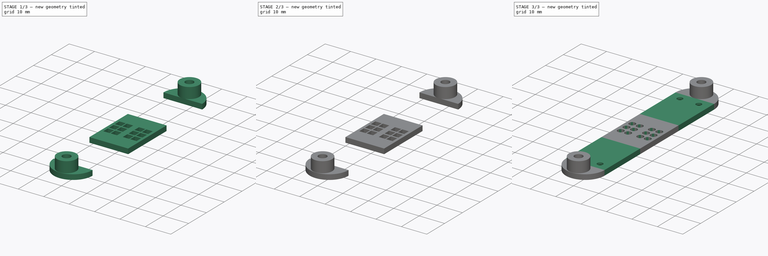
[diagram: build sequence overview — one tinted view per stage of 3, left to right]
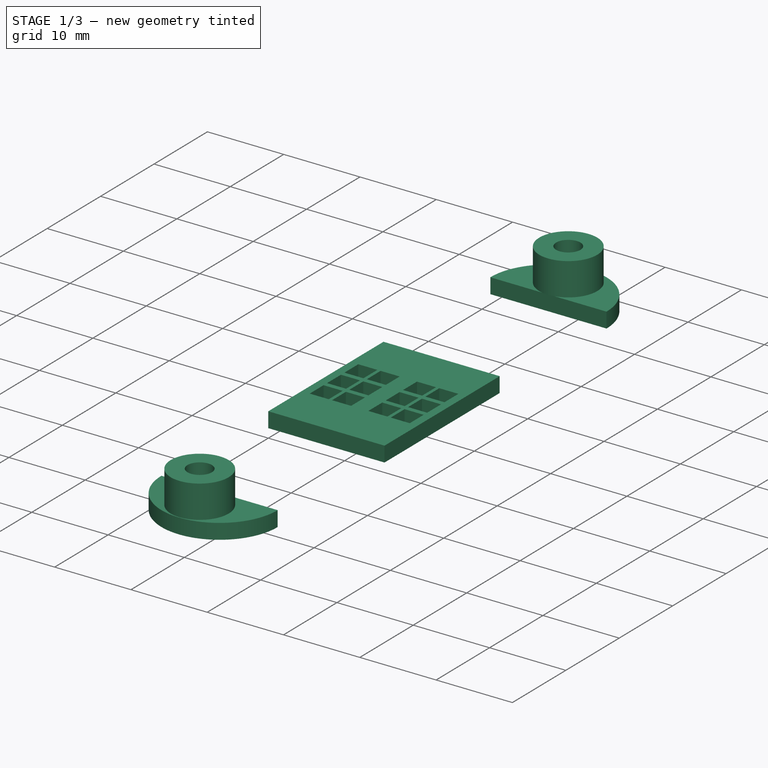
[diagram: stage 1 of 3 — iso view after this stage's code; geometry added in this stage tinted green]
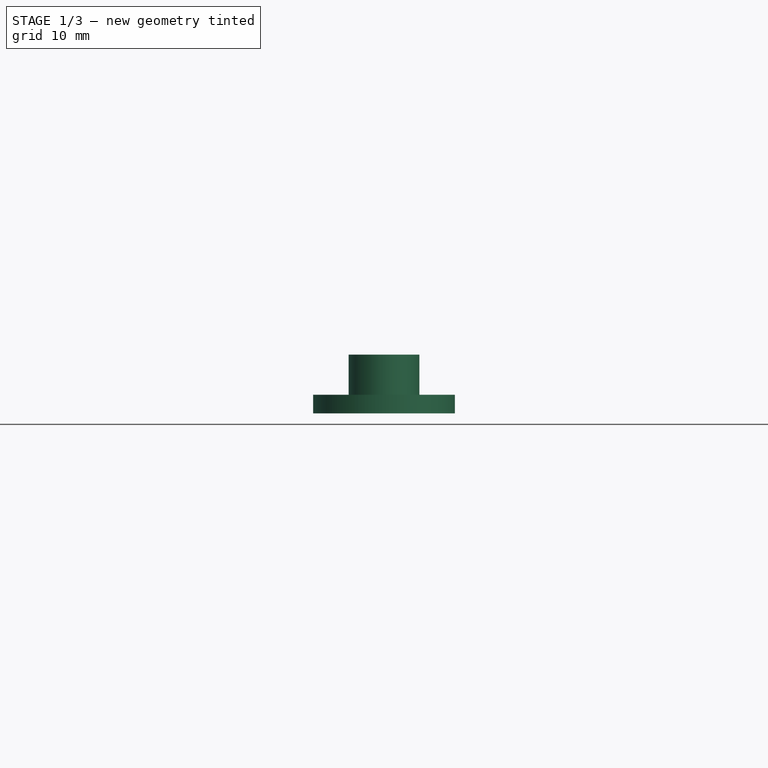
[diagram: stage 1 of 3 — front view after this stage's code; geometry added in this stage tinted green]
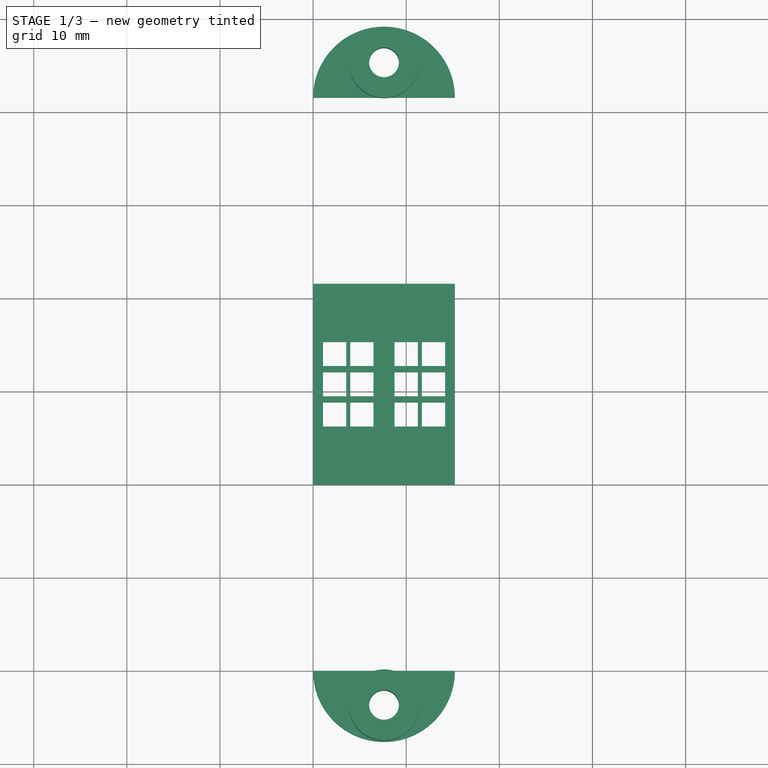
[diagram: stage 1 of 3 — top view after this stage's code; geometry added in this stage tinted green]
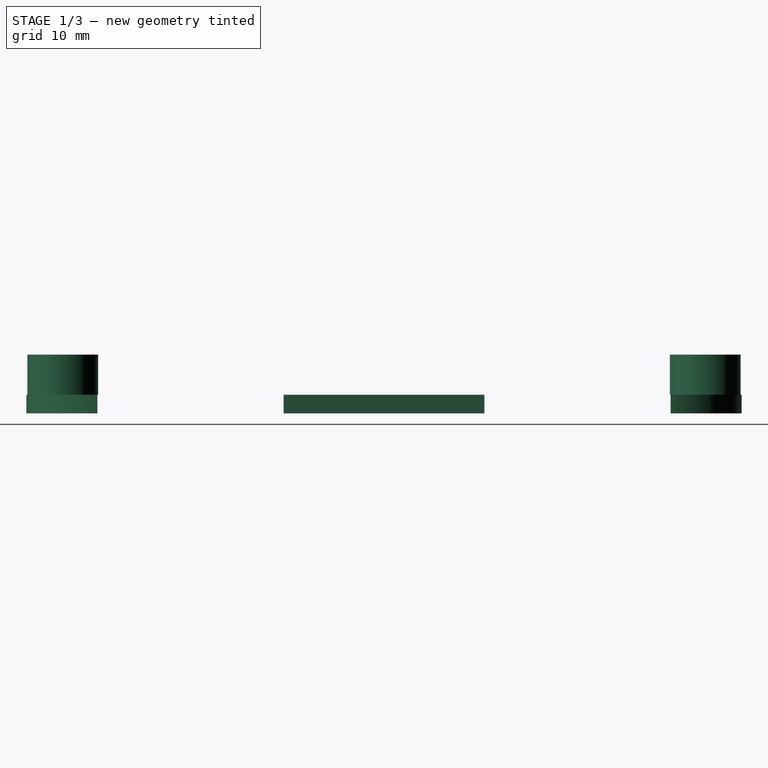
[diagram: stage 1 of 3 — right view after this stage's code; geometry added in this stage tinted green]
FCSTD DOCUMENT  (FreeCAD 0.16R6706 (Git))
Label: TopPlate 1.8
License: All rights reserved
LicenseURL: http://en.wikipedia.org/wiki/All_rights_reserved
objects: Sketcher::SketchObject×5, PartDesign::Pad×5, PartDesign::Chamfer×3
note: 18 computed .brp shape members not serialized (recipe doc carries the construction recipe); baked Part::Feature solids carry a one-line shape summary decoded from their .brp

FEATURE [Sketcher::SketchObject] Sketch001
  sketch-geometry (12):
    g0: LineSegment StartX=0 StartY=0 StartZ=0 EndX=15.232 EndY=0 EndZ=0
    g1: LineSegment StartX=15.232 StartY=0 StartZ=0 EndX=15.232 EndY=-20 EndZ=0
    g2: LineSegment StartX=15.232 StartY=-20 StartZ=0 EndX=0 EndY=-20 EndZ=0
    g3: LineSegment StartX=0 StartY=-20 StartZ=0 EndX=0 EndY=0 EndZ=0
    g4: Circle CenterX=3.8995 CenterY=-16.9419 CenterZ=0 NormalX=0 NormalY=0 NormalZ=1 Radius=1.1
    g5: Circle CenterX=11.3325 CenterY=-16.9419 CenterZ=0 NormalX=0 NormalY=0 NormalZ=1 Radius=1.1
    g6: LineSegment StartX=0 StartY=21.56 StartZ=0 EndX=15.232 EndY=21.56 EndZ=0
    g7: LineSegment StartX=15.232 StartY=21.56 StartZ=0 EndX=15.232 EndY=41.56 EndZ=0
    g8: LineSegment StartX=15.232 StartY=41.56 StartZ=0 EndX=0 EndY=41.56 EndZ=0
    g9: LineSegment StartX=0 StartY=41.56 StartZ=0 EndX=0 EndY=21.56 EndZ=0
    g10: Circle CenterX=3.8995 CenterY=38.5019 CenterZ=0 NormalX=0 NormalY=0 NormalZ=1 Radius=1.1
    g11: Circle CenterX=11.3325 CenterY=38.5019 CenterZ=0 NormalX=0 NormalY=0 NormalZ=1 Radius=1.1
  constraints (34):
    c: Coincident(g0,g1)
    c: Coincident(g1,g2)
    c: Coincident(g2,g3)
    c: Coincident(g3,g0)
    c: Horizontal(g0)
    c: Horizontal(g2)
    c: Vertical(g1)
    c: Vertical(g3)
    c: DistanceX(g-1,g0) = 15.232
    c: DistanceY(g2,g-1) = 20
    c: DistanceY(g4,g-1) = 16.9419
    c: Radius(g4) = 1.1
    c: DistanceY(g5,g-1) = 16.9419
    c: Radius(g5) = 1.1
    c: Coincident(g6,g7)
    c: Coincident(g7,g8)
    c: Coincident(g8,g9)
    c: Coincident(g9,g6)
    c: Horizontal(g6)
    c: Horizontal(g8)
    c: Vertical(g7)
    c: Vertical(g9)
    c: PointOnObject(g6,g-2)
    c: DistanceX(g6,g6) = 15.232
    c: DistanceY(g6,g7) = 20
    c: Radius(g11) = 1.1
    c: Radius(g10) = 1.1
    c: DistanceY(g-1,g10) = 38.5019
    c: DistanceY(g-1,g11) = 38.5019
    c: DistanceX(g6,g10) = 3.8995
    c: DistanceX(g-1,g11) = 11.3325
    c: DistanceX(g-1,g4) = 3.8995
    c: DistanceX(g-1,g5) = 11.3325
    c: DistanceY(g-1,g6) = 21.56
FEATURE [Sketcher::SketchObject] Sketch002
  sketch-geometry (6):
    g0: ArcOfCircle CenterX=7.616 CenterY=41.56 CenterZ=0 NormalX=0 NormalY=0 NormalZ=1 Radius=7.616 StartAngle=0 EndAngle=3.14159
    g1: ArcOfCircle CenterX=7.616 CenterY=-20 CenterZ=0 NormalX=0 NormalY=0 NormalZ=1 Radius=7.616 StartAngle=3.14159 EndAngle=6.28319
    g2: Circle CenterX=7.616 CenterY=45.28 CenterZ=0 NormalX=0 NormalY=0 NormalZ=1 Radius=1.6
    g3: Circle CenterX=7.616 CenterY=-23.72 CenterZ=0 NormalX=0 NormalY=0 NormalZ=1 Radius=1.6
    g4: LineSegment StartX=0 StartY=-20 StartZ=0 EndX=15.232 EndY=-20 EndZ=0
    g5: LineSegment StartX=0 StartY=41.56 StartZ=0 EndX=15.232 EndY=41.56 EndZ=0
  constraints (20):
    c: DistanceY(g-1,g0) = 41.56
    c: DistanceY(g-1,g0) = 41.56
    c: DistanceY(g-1,g0) = 41.56
    c: DistanceX(g-1,g0) = 7.616
    c: DistanceY(g1,g-1) = 20
    c: DistanceX(g-1,g1) = 7.616
    c: Radius(g2) = 1.6
    c: DistanceY(g-1,g2) = 45.28
    c: DistanceX(g-1,g2) = 7.616
    c: DistanceX(g1,g3) = 7.616
    c: Radius(g3) = 1.6
    c: DistanceY(g3,g-1) = 23.72
    c: Coincident(g4,g1)
    c: Coincident(g4,g1)
    c: Horizontal(g4)
    c: Coincident(g5,g0)
    c: Coincident(g5,g0)
    c: DistanceX(g-1,g0) = 0
    c: DistanceX(g-1,g1) = 0
    c: DistanceY(g1,g1) = 0
FEATURE [PartDesign::Pad] Pad
  Length = 2
  Length2 = 100
  Sketch = -> Sketch002
  Type = 0
FEATURE [Sketcher::SketchObject] Sketch005
  sketch-geometry (52):
    g0: LineSegment StartX=0 StartY=0 StartZ=0 EndX=15.232 EndY=0 EndZ=0
    g1: LineSegment StartX=15.232 StartY=0 StartZ=0 EndX=15.232 EndY=21.56 EndZ=0
    g2: LineSegment StartX=15.232 StartY=21.56 StartZ=0 EndX=0 EndY=21.56 EndZ=0
    g3: LineSegment StartX=0 StartY=21.56 StartZ=0 EndX=0 EndY=0 EndZ=0
    g4: LineSegment StartX=1.0599 StartY=12.08 StartZ=0 EndX=3.5599 EndY=12.08 EndZ=0
    g5: LineSegment StartX=3.5599 StartY=12.08 StartZ=0 EndX=3.5599 EndY=9.48 EndZ=0
    g6: LineSegment StartX=3.5599 StartY=9.48 StartZ=0 EndX=1.0599 EndY=9.48 EndZ=0
    g7: LineSegment StartX=1.0599 StartY=9.48 StartZ=0 EndX=1.0599 EndY=12.08 EndZ=0
    g8: LineSegment StartX=1.0599 StartY=15.33 StartZ=0 EndX=3.5599 EndY=15.33 EndZ=0
    g9: LineSegment StartX=3.5599 StartY=15.33 StartZ=0 EndX=3.5599 EndY=12.73 EndZ=0
    g10: LineSegment StartX=3.5599 StartY=12.73 StartZ=0 EndX=1.0599 EndY=12.73 EndZ=0
    g11: LineSegment StartX=1.0599 StartY=12.73 StartZ=0 EndX=1.0599 EndY=15.33 EndZ=0
    g12: LineSegment StartX=1.0599 StartY=8.83 StartZ=0 EndX=3.5599 EndY=8.83 EndZ=0
    g13: LineSegment StartX=3.5599 StartY=8.83 StartZ=0 EndX=3.5599 EndY=6.23 EndZ=0
    g14: LineSegment StartX=3.5599 StartY=6.23 StartZ=0 EndX=1.0599 EndY=6.23 EndZ=0
    g15: LineSegment StartX=1.0599 StartY=6.23 StartZ=0 EndX=1.0599 EndY=8.83 EndZ=0
    g16: LineSegment StartX=3.9899 StartY=15.33 StartZ=0 EndX=6.4899 EndY=15.33 EndZ=0
    g17: LineSegment StartX=6.4899 StartY=15.33 StartZ=0 EndX=6.4899 EndY=12.73 EndZ=0
    g18: LineSegment StartX=6.4899 StartY=12.73 StartZ=0 EndX=3.9899 EndY=12.73 EndZ=0
    g19: LineSegment StartX=3.9899 StartY=12.73 StartZ=0 EndX=3.9899 EndY=15.33 EndZ=0
    g20: LineSegment StartX=3.9899 StartY=12.08 StartZ=0 EndX=6.4899 EndY=12.08 EndZ=0
    g21: LineSegment StartX=6.4899 StartY=12.08 StartZ=0 EndX=6.4899 EndY=9.48 EndZ=0
    g22: LineSegment StartX=6.4899 StartY=9.48 StartZ=0 EndX=3.9899 EndY=9.48 EndZ=0
    g23: LineSegment StartX=3.9899 StartY=9.48 StartZ=0 EndX=3.9899 EndY=12.08 EndZ=0
    g24: LineSegment StartX=3.9899 StartY=8.83 StartZ=0 EndX=6.4899 EndY=8.83 EndZ=0
    g25: LineSegment StartX=6.4899 StartY=8.83 StartZ=0 EndX=6.4899 EndY=6.23 EndZ=0
    g26: LineSegment StartX=6.4899 StartY=6.23 StartZ=0 EndX=3.9899 EndY=6.23 EndZ=0
    g27: LineSegment StartX=3.9899 StartY=6.23 StartZ=0 EndX=3.9899 EndY=8.83 EndZ=0
    g28: LineSegment StartX=8.75 StartY=15.33 StartZ=0 EndX=11.25 EndY=15.33 EndZ=0
    g29: LineSegment StartX=11.25 StartY=15.33 StartZ=0 EndX=11.25 EndY=12.73 EndZ=0
    g30: LineSegment StartX=11.25 StartY=12.73 StartZ=0 EndX=8.75 EndY=12.73 EndZ=0
    g31: LineSegment StartX=8.75 StartY=12.73 StartZ=0 EndX=8.75 EndY=15.33 EndZ=0
    g32: LineSegment StartX=11.68 StartY=15.33 StartZ=0 EndX=14.18 EndY=15.33 EndZ=0
    g33: LineSegment StartX=14.18 StartY=15.33 StartZ=0 EndX=14.18 EndY=12.73 EndZ=0
    g34: LineSegment StartX=14.18 StartY=12.73 StartZ=0 EndX=11.68 EndY=12.73 EndZ=0
    g35: LineSegment StartX=11.68 StartY=12.73 StartZ=0 EndX=11.68 EndY=15.33 EndZ=0
    g36: LineSegment StartX=8.75 StartY=12.08 StartZ=0 EndX=11.25 EndY=12.08 EndZ=0
    g37: LineSegment StartX=11.25 StartY=12.08 StartZ=0 EndX=11.25 EndY=9.48 EndZ=0
    g38: LineSegment StartX=11.25 StartY=9.48 StartZ=0 EndX=8.75 EndY=9.48 EndZ=0
    g39: LineSegment StartX=8.75 StartY=9.48 StartZ=0 EndX=8.75 EndY=12.08 EndZ=0
    g40: LineSegment StartX=11.68 StartY=12.08 StartZ=0 EndX=14.18 EndY=12.08 EndZ=0
    g41: LineSegment StartX=14.18 StartY=12.08 StartZ=0 EndX=14.18 EndY=9.48 EndZ=0
    g42: LineSegment StartX=14.18 StartY=9.48 StartZ=0 EndX=11.68 EndY=9.48 EndZ=0
    g43: LineSegment StartX=11.68 StartY=9.48 StartZ=0 EndX=11.68 EndY=12.08 EndZ=0
    g44: LineSegment StartX=8.75 StartY=8.83 StartZ=0 EndX=11.25 EndY=8.83 EndZ=0
    g45: LineSegment StartX=11.25 StartY=8.83 StartZ=0 EndX=11.25 EndY=6.23 EndZ=0
    g46: LineSegment StartX=11.25 StartY=6.23 StartZ=0 EndX=8.75 EndY=6.23 EndZ=0
    g47: LineSegment StartX=8.75 StartY=6.23 StartZ=0 EndX=8.75 EndY=8.83 EndZ=0
    g48: LineSegment StartX=11.68 StartY=8.83 StartZ=0 EndX=14.18 EndY=8.83 EndZ=0
    g49: LineSegment StartX=14.18 StartY=8.83 StartZ=0 EndX=14.18 EndY=6.23 EndZ=0
    g50: LineSegment StartX=14.18 StartY=6.23 StartZ=0 EndX=11.68 EndY=6.23 EndZ=0
    g51: LineSegment StartX=11.68 StartY=6.23 StartZ=0 EndX=11.68 EndY=8.83 EndZ=0
  constraints (155):
    c: Coincident(g0,g1)
    c: Coincident(g1,g2)
    c: Coincident(g2,g3)
    c: Coincident(g3,g0)
    c: Horizontal(g0)
    c: Horizontal(g2)
    c: Vertical(g1)
    c: Vertical(g3)
    c: Coincident(g0,g-1)
    c: DistanceX(g-1,g0) = 15.232
    c: DistanceY(g-1,g2) = 21.56
    c: Coincident(g4,g5)
    c: Coincident(g5,g6)
    c: Coincident(g6,g7)
    c: Coincident(g7,g4)
    c: Horizontal(g4)
    c: Horizontal(g6)
    c: Vertical(g5)
    c: Vertical(g7)
    c: Coincident(g8,g9)
    c: Coincident(g9,g10)
    c: Coincident(g10,g11)
    c: Coincident(g11,g8)
    c: Horizontal(g8)
    c: Horizontal(g10)
    c: Vertical(g9)
    c: Vertical(g11)
    c: Coincident(g12,g13)
    c: Coincident(g13,g14)
    c: Coincident(g14,g15)
    c: Coincident(g15,g12)
    c: Horizontal(g12)
    c: Horizontal(g14)
    c: Vertical(g13)
    c: Vertical(g15)
    c: Coincident(g16,g17)
    c: Coincident(g17,g18)
    c: Coincident(g18,g19)
    c: Coincident(g19,g16)
    c: Horizontal(g16)
    c: Horizontal(g18)
    c: Vertical(g17)
    c: Vertical(g19)
    c: Coincident(g20,g21)
    c: Coincident(g21,g22)
    c: Coincident(g22,g23)
    c: Coincident(g23,g20)
    c: Horizontal(g20)
    c: Horizontal(g22)
    c: Vertical(g21)
    c: Vertical(g23)
    c: Coincident(g24,g25)
    c: Coincident(g25,g26)
    c: Coincident(g26,g27)
    c: Coincident(g27,g24)
    c: Horizontal(g24)
    c: Horizontal(g26)
    c: Vertical(g25)
    c: Vertical(g27)
    c: DistanceY(g6,g4) = 2.6
    c: DistanceY(g10,g8) = 2.6
    c: DistanceY(g14,g12) = 2.6
    c: DistanceY(g-1,g6) = 9.48
    c: DistanceY(g22,g20) = 2.6
    c: DistanceY(g18,g16) = 2.6
    c: DistanceY(g26,g24) = 2.6
    c: DistanceY(g4,g10) = 0.65
    c: DistanceY(g12,g6) = 0.65
    c: DistanceY(g24,g22) = 0.65
    c: DistanceY(g20,g18) = 0.65
    c: DistanceX(g6,g5) = 2.5
    c: DistanceX(g14,g13) = 2.5
    c: DistanceX(g10,g4) = 0
    c: DistanceX(g6,g12) = 0
    c: DistanceX(g10,g9) = 2.5
    c: DistanceX(g20,g18) = 0
    c: DistanceX(g22,g24) = 0
    c: DistanceX(g22,g21) = 2.5
    c: DistanceX(g26,g25) = 2.5
    c: DistanceX(g18,g17) = 2.5
    c: DistanceX(g5,g22) = 0.43
    c: DistanceX(g-1,g6) = 1.0599
    c: Coincident(g28,g29)
    c: Coincident(g29,g30)
    c: Coincident(g30,g31)
    c: Coincident(g31,g28)
    c: Horizontal(g28)
    c: Horizontal(g30)
    c: Vertical(g29)
    c: Vertical(g31)
    c: Coincident(g32,g33)
    c: Coincident(g33,g34)
    c: Coincident(g34,g35)
    c: Coincident(g35,g32)
    c: Horizontal(g32)
    c: Horizontal(g34)
    c: Vertical(g33)
    c: Vertical(g35)
    c: Coincident(g36,g37)
    c: Coincident(g37,g38)
    c: Coincident(g38,g39)
    c: Coincident(g39,g36)
    c: Horizontal(g36)
    c: Horizontal(g38)
    c: Vertical(g37)
    c: Vertical(g39)
    c: Coincident(g40,g41)
    c: Coincident(g41,g42)
    c: Coincident(g42,g43)
    c: Coincident(g43,g40)
    c: Horizontal(g40)
    c: Horizontal(g42)
    c: Vertical(g41)
    c: Vertical(g43)
    c: Coincident(g44,g45)
    c: Coincident(g45,g46)
    c: Coincident(g46,g47)
    c: Coincident(g47,g44)
    c: Horizontal(g44)
    c: Horizontal(g46)
    c: Vertical(g45)
    c: Vertical(g47)
    c: Coincident(g48,g49)
    c: Coincident(g49,g50)
    c: Coincident(g50,g51)
    c: Coincident(g51,g48)
    c: Horizontal(g48)
    c: Horizontal(g50)
    c: Vertical(g49)
    c: Vertical(g51)
    c: DistanceX(g-1,g38) = 8.75
    c: DistanceX(g36,g36) = 2.5
    c: DistanceX(g30,g29) = 2.5
    c: DistanceX(g44,g44) = 2.5
    c: DistanceX(g40,g40) = 2.5
    c: DistanceX(g34,g33) = 2.5
    c: DistanceX(g50,g49) = 2.5
    c: DistanceY(g46,g44) = 2.6
    c: DistanceY(g50,g48) = 2.6
    c: DistanceY(g42,g40) = 2.6
    c: DistanceY(g30,g28) = 2.6
    c: DistanceY(g34,g32) = 2.6
    c: DistanceY(g38,g36) = 2.6
    c: DistanceX(g38,g44) = 0
    c: DistanceX(g30,g36) = 0
    c: DistanceX(g34,g40) = 0
    c: DistanceX(g42,g48) = 0
    c: DistanceY(g48,g42) = 0.65
    c: DistanceY(g44,g38) = 0.65
    c: DistanceY(g40,g34) = 0.65
    c: DistanceY(g36,g30) = 0.65
    c: DistanceY(g42,g37) = 0
    c: DistanceX(g37,g42) = 0.43
    c: DistanceY(g-1,g38) = 9.48
    c: DistanceY(g22,g5) = 0
FEATURE [PartDesign::Pad] Pad003
  Length = 2
  Length2 = 100
  Sketch = -> Sketch005
  Type = 0
FEATURE [Sketcher::SketchObject] Sketch
  Placement = pos=(0,0,2) rot=(0,0,1;0rad)
  sketch-geometry (4):
    g0: Circle CenterX=7.616 CenterY=45.28 CenterZ=0 NormalX=0 NormalY=0 NormalZ=1 Radius=3.8
    g1: Circle CenterX=7.616 CenterY=45.28 CenterZ=0 NormalX=0 NormalY=0 NormalZ=1 Radius=1.6
    g2: Circle CenterX=7.616 CenterY=-23.72 CenterZ=0 NormalX=0 NormalY=0 NormalZ=1 Radius=3.8
    g3: Circle CenterX=7.616 CenterY=-23.72 CenterZ=0 NormalX=0 NormalY=0 NormalZ=1 Radius=1.6
  constraints (10):
    c: Radius(g0) = 3.8
    c: Coincident(g1,g0)
    c: Radius(g1) = 1.6
    c: DistanceX(g-1,g0) = 7.616
    c: DistanceY(g-1,g0) = 45.28
    c: Coincident(g3,g2)
    c: Radius(g2) = 3.8
    c: Radius(g3) = 1.6
    c: DistanceX(g-1,g2) = 7.616
    c: DistanceY(g2,g-1) = 23.72
FEATURE [PartDesign::Pad] Pad004
  Length = 4.3
  Length2 = 100
  Placement = pos=(0,0,2) rot=(0,0,1;0rad)
  Sketch = -> Sketch
  Type = 0
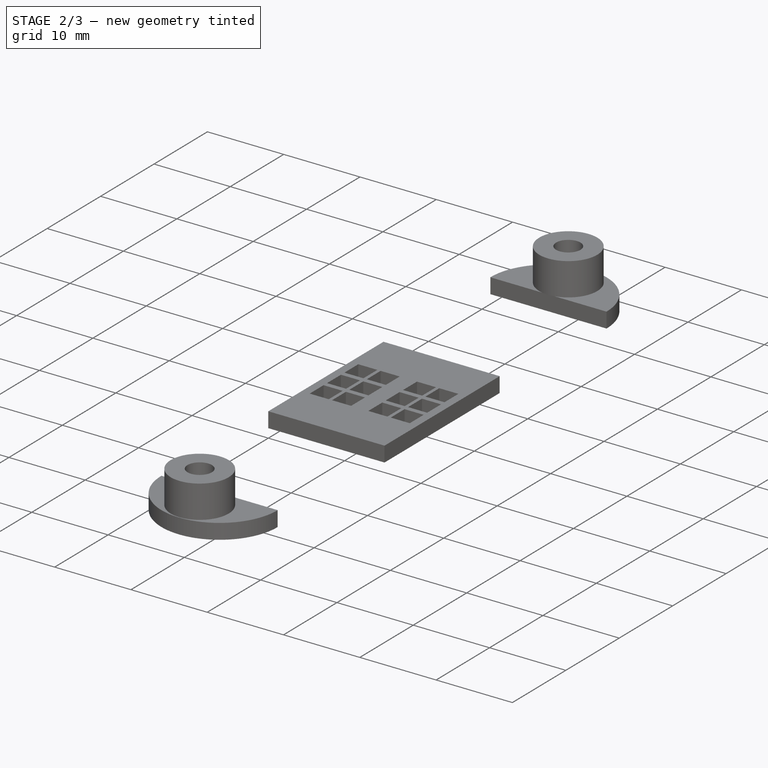
[diagram: stage 2 of 3 — iso view after this stage's code; geometry added in this stage tinted green]
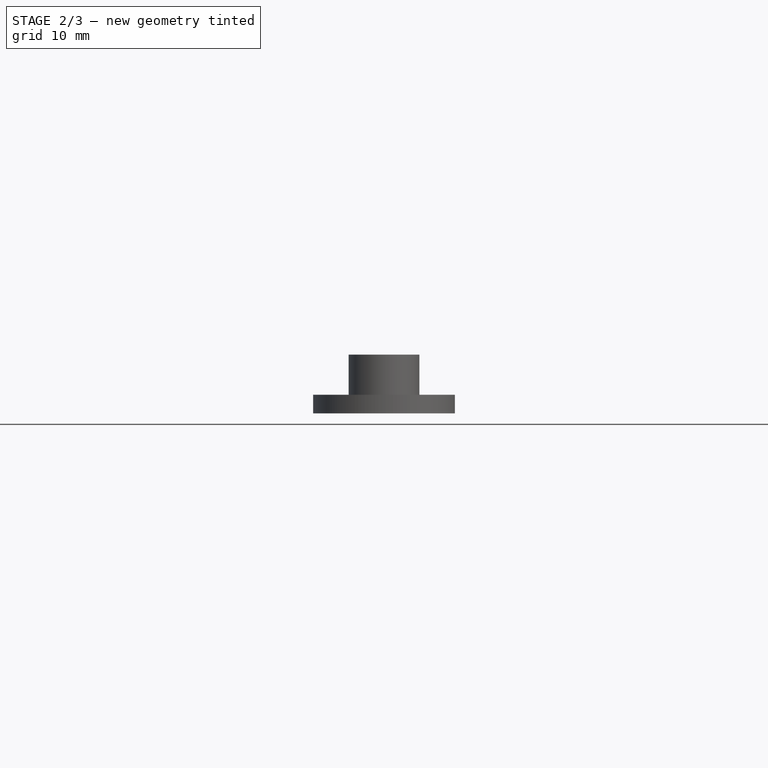
[diagram: stage 2 of 3 — front view after this stage's code; geometry added in this stage tinted green]
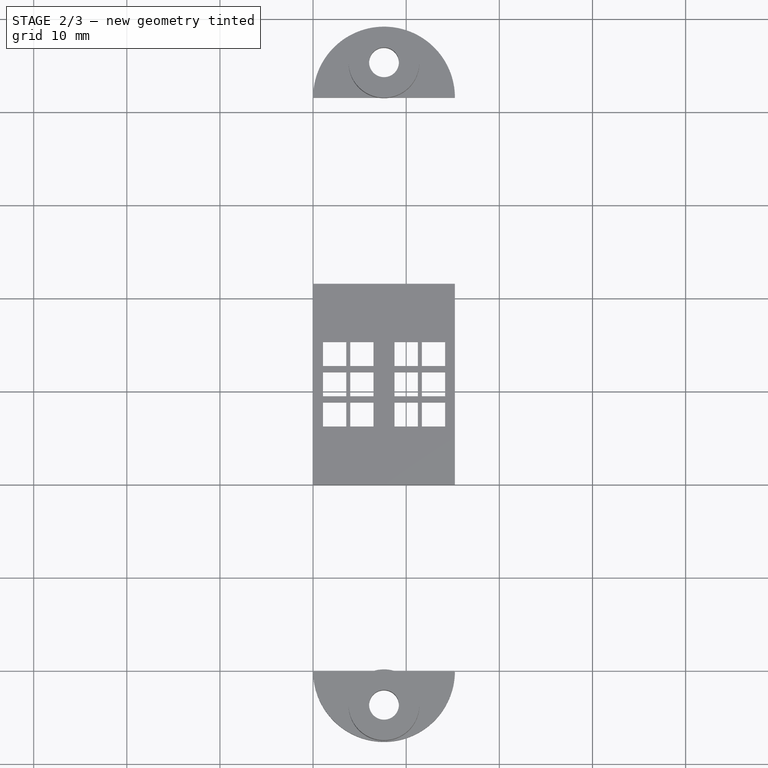
[diagram: stage 2 of 3 — top view after this stage's code; geometry added in this stage tinted green]
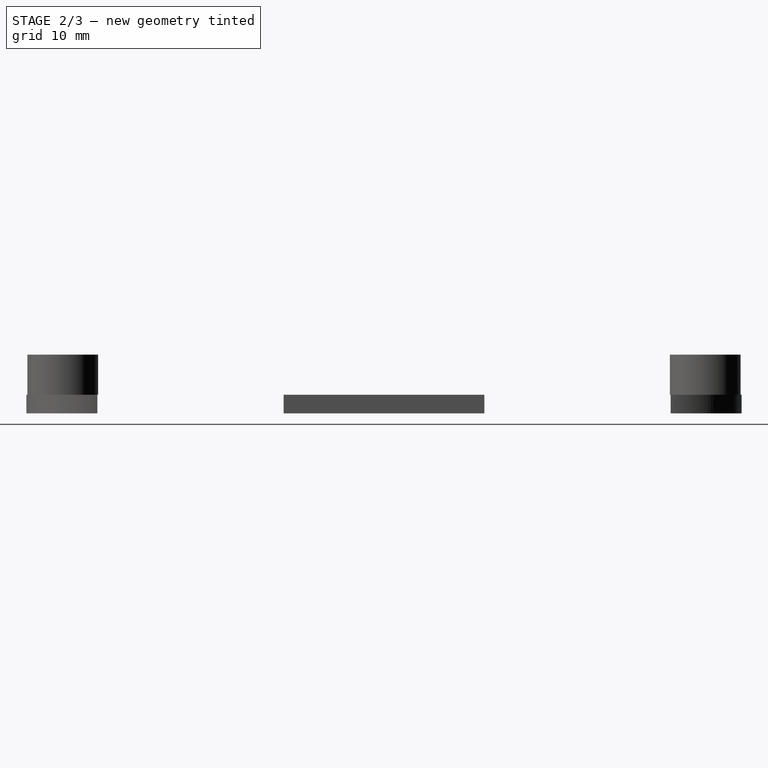
[diagram: stage 2 of 3 — right view after this stage's code; geometry added in this stage tinted green]
FEATURE [PartDesign::Chamfer] Chamfer
  Base = -> Pad [Edge8]
  Size = 1.65
FEATURE [PartDesign::Chamfer] Chamfer003
  Base = -> Chamfer [Edge19]
  Size = 1.65
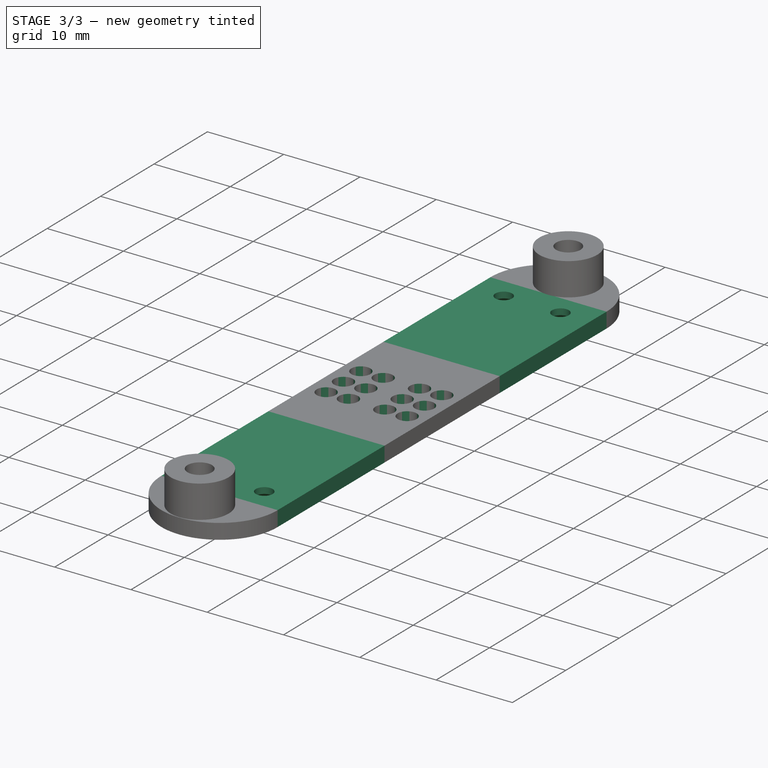
[diagram: stage 3 of 3 — iso view after this stage's code; geometry added in this stage tinted green]
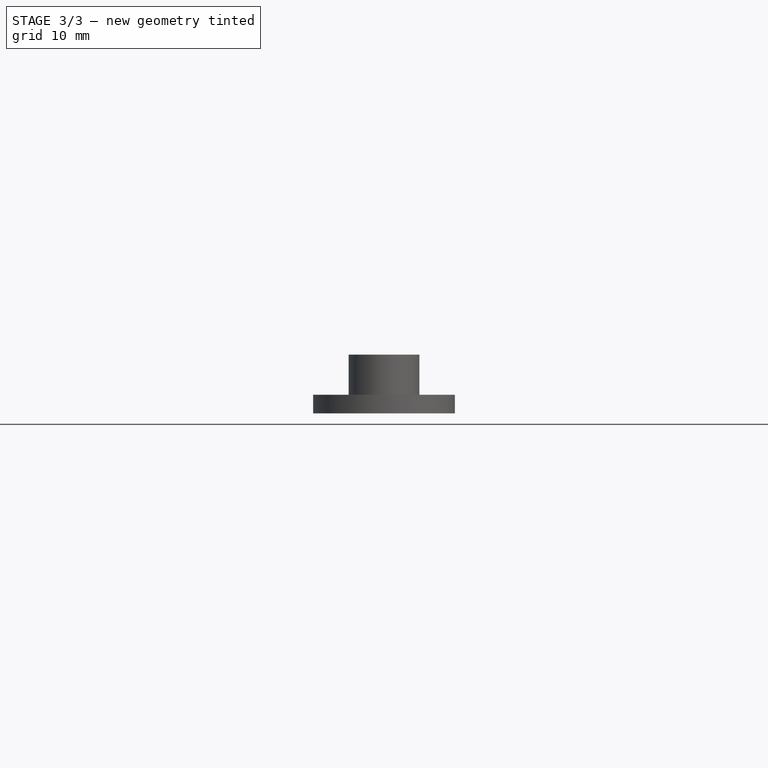
[diagram: stage 3 of 3 — front view after this stage's code; geometry added in this stage tinted green]
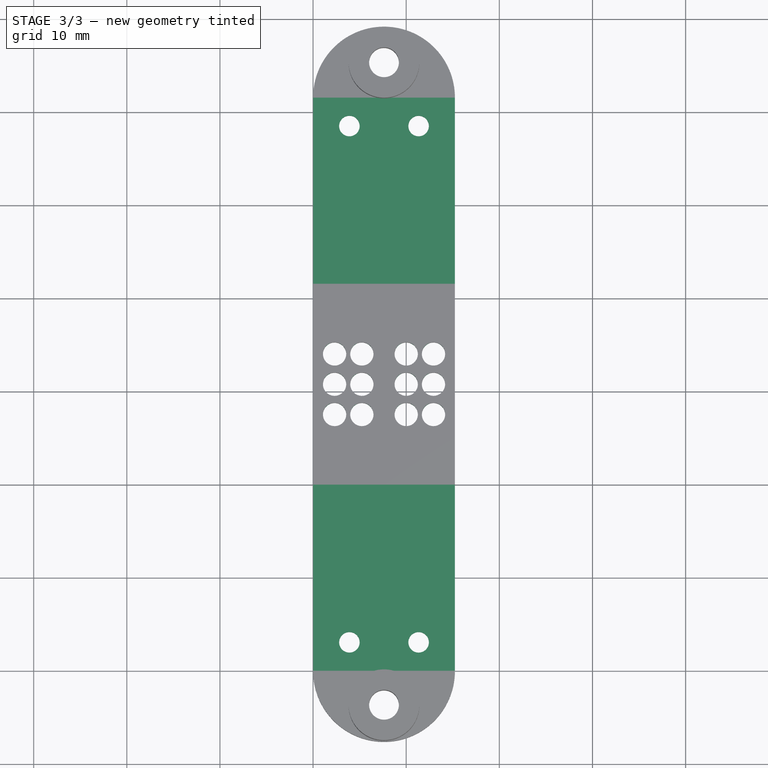
[diagram: stage 3 of 3 — top view after this stage's code; geometry added in this stage tinted green]
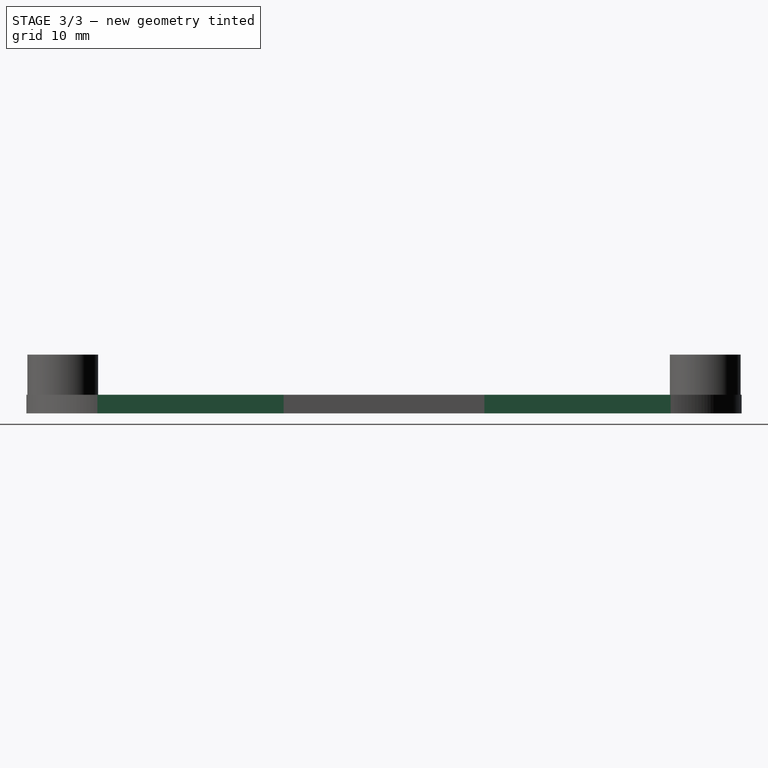
[diagram: stage 3 of 3 — right view after this stage's code; geometry added in this stage tinted green]
FEATURE [PartDesign::Pad] Pad001
  Length = 2
  Length2 = 100
  Sketch = -> Sketch001
  Type = 0
FEATURE [Sketcher::SketchObject] Sketch004
  sketch-geometry (16):
    g0: LineSegment StartX=0 StartY=0 StartZ=0 EndX=15.232 EndY=0 EndZ=0
    g1: LineSegment StartX=15.232 StartY=0 StartZ=0 EndX=15.232 EndY=21.56 EndZ=0
    g2: LineSegment StartX=15.232 StartY=21.56 StartZ=0 EndX=0 EndY=21.56 EndZ=0
    g3: LineSegment StartX=0 StartY=21.56 StartZ=0 EndX=0 EndY=0 EndZ=0
    g4: Circle CenterX=2.3099 CenterY=7.53 CenterZ=0 NormalX=0 NormalY=0 NormalZ=1 Radius=1.25
    g5: Circle CenterX=2.3099 CenterY=14.03 CenterZ=0 NormalX=0 NormalY=0 NormalZ=1 Radius=1.25
    g6: Circle CenterX=2.3099 CenterY=10.78 CenterZ=0 NormalX=0 NormalY=0 NormalZ=1 Radius=1.25
    g7: Circle CenterX=5.2399 CenterY=14.03 CenterZ=0 NormalX=0 NormalY=0 NormalZ=1 Radius=1.25
    g8: Circle CenterX=5.2399 CenterY=10.78 CenterZ=0 NormalX=0 NormalY=0 NormalZ=1 Radius=1.25
    g9: Circle CenterX=5.2399 CenterY=7.53 CenterZ=0 NormalX=0 NormalY=0 NormalZ=1 Radius=1.25
    g10: Circle CenterX=10 CenterY=14.03 CenterZ=0 NormalX=0 NormalY=0 NormalZ=1 Radius=1.25
    g11: Circle CenterX=10 CenterY=10.78 CenterZ=0 NormalX=0 NormalY=0 NormalZ=1 Radius=1.25
    g12: Circle CenterX=10 CenterY=7.53 CenterZ=0 NormalX=0 NormalY=0 NormalZ=1 Radius=1.25
    g13: Circle CenterX=12.93 CenterY=7.53 CenterZ=0 NormalX=0 NormalY=0 NormalZ=1 Radius=1.25
    g14: Circle CenterX=12.93 CenterY=10.78 CenterZ=0 NormalX=0 NormalY=0 NormalZ=1 Radius=1.25
    g15: Circle CenterX=12.93 CenterY=14.03 CenterZ=0 NormalX=0 NormalY=0 NormalZ=1 Radius=1.25
  constraints (47):
    c: Coincident(g0,g1)
    c: Coincident(g1,g2)
    c: Coincident(g2,g3)
    c: Coincident(g3,g0)
    c: Horizontal(g0)
    c: Horizontal(g2)
    c: Vertical(g1)
    c: Vertical(g3)
    c: Coincident(g0,g-1)
    c: DistanceX(g-1,g0) = 15.232
    c: DistanceY(g-1,g2) = 21.56
    c: DistanceX(g3,g4) = 2.3099
    c: Radius(g4) = 1.25
    c: DistanceY(g4,g6) = 3.25
    c: Radius(g6) = 1.25
    c: DistanceX(g4,g6) = 0
    c: DistanceX(g6,g5) = 0
    c: Radius(g5) = 1.25
    c: DistanceY(g6,g5) = 3.25
    c: DistanceY(g3,g6) = -10.78
    c: Radius(g9) = 1.25
    c: Radius(g8) = 1.25
    c: Radius(g7) = 1.25
    c: DistanceX(g8,g9) = 0
    c: DistanceX(g7,g8) = 0
    c: DistanceY(g8,g7) = 3.25
    c: DistanceY(g9,g8) = 3.25
    c: DistanceX(g4,g9) = 2.93
    c: DistanceY(g6,g8) = 0
    c: Radius(g15) = 1.25
    c: Radius(g10) = 1.25
    c: Radius(g11) = 1.25
    c: Radius(g14) = 1.25
    c: Radius(g12) = 1.25
    c: Radius(g13) = 1.25
    c: DistanceX(g13,g14) = 0
    c: DistanceX(g15,g14) = 0
    c: DistanceY(g14,g15) = 3.25
    c: DistanceY(g13,g14) = 3.25
    c: DistanceX(g12,g11) = 0
    c: DistanceX(g11,g10) = 0
    c: DistanceY(g11,g10) = 3.25
    c: DistanceY(g12,g11) = 3.25
    c: DistanceY(g13,g12) = 0
    c: DistanceY(g3,g11) = -10.78
    c: DistanceX(g3,g11) = 10
    c: DistanceX(g11,g14) = 2.93
FEATURE [PartDesign::Pad] Pad002
  Length = 2
  Length2 = 100
  Sketch = -> Sketch004
  Type = 0
FEATURE [PartDesign::Chamfer] Chamfer002
  Base = -> Pad001 [Edge35,Edge32,Edge17,Edge14]
  Size = 1.2
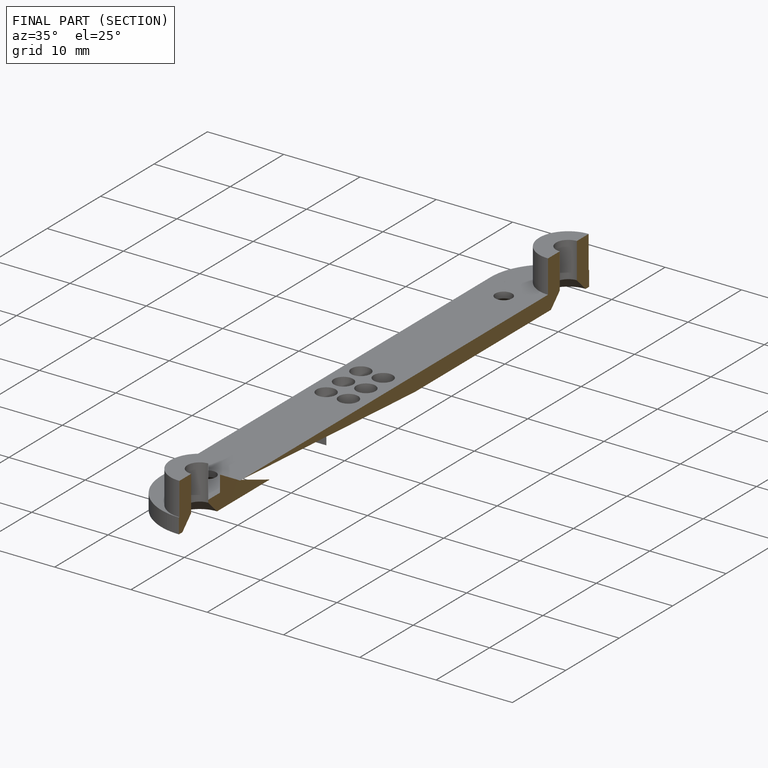
[diagram: finished part — half-section view (interior)]
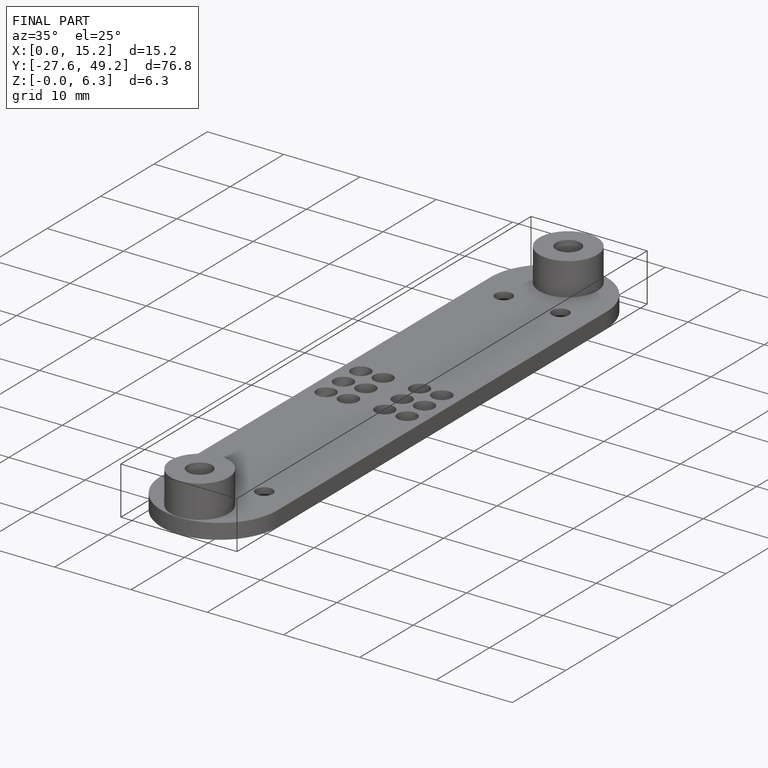
[diagram: finished part — iso view with bounding-box wireframe]
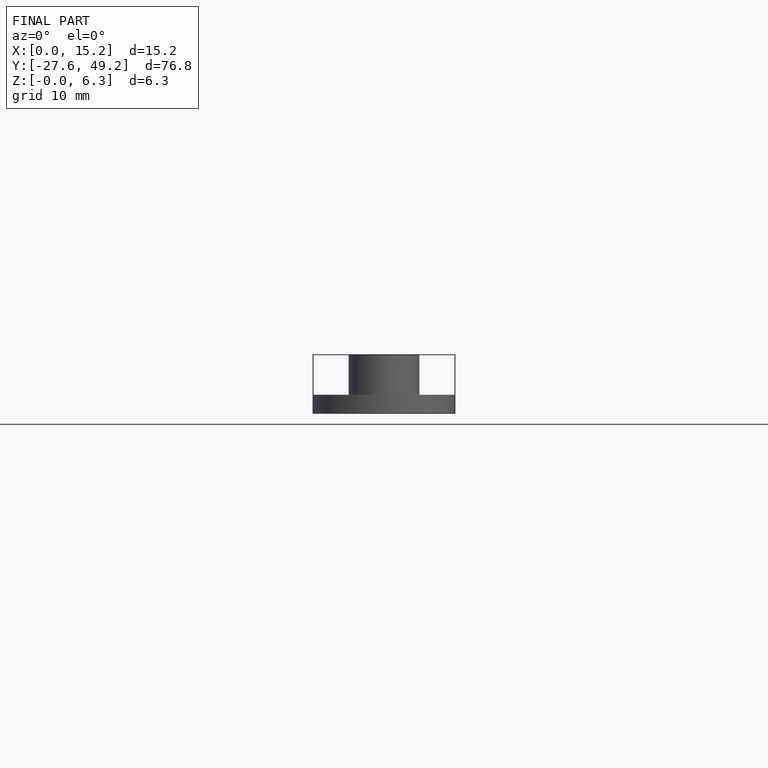
[diagram: finished part — front view with bounding-box wireframe]
